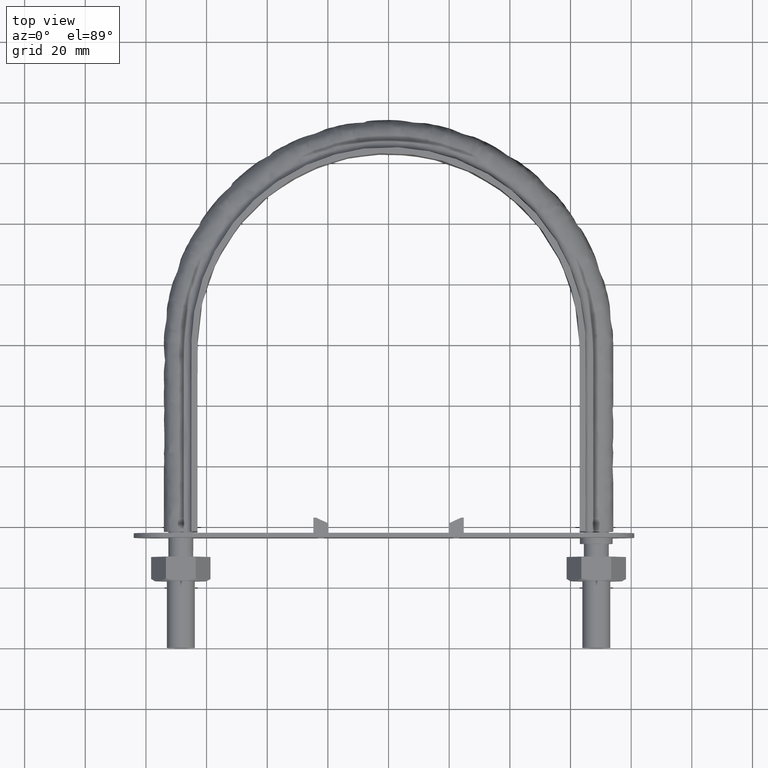
[diagram: clean part render]
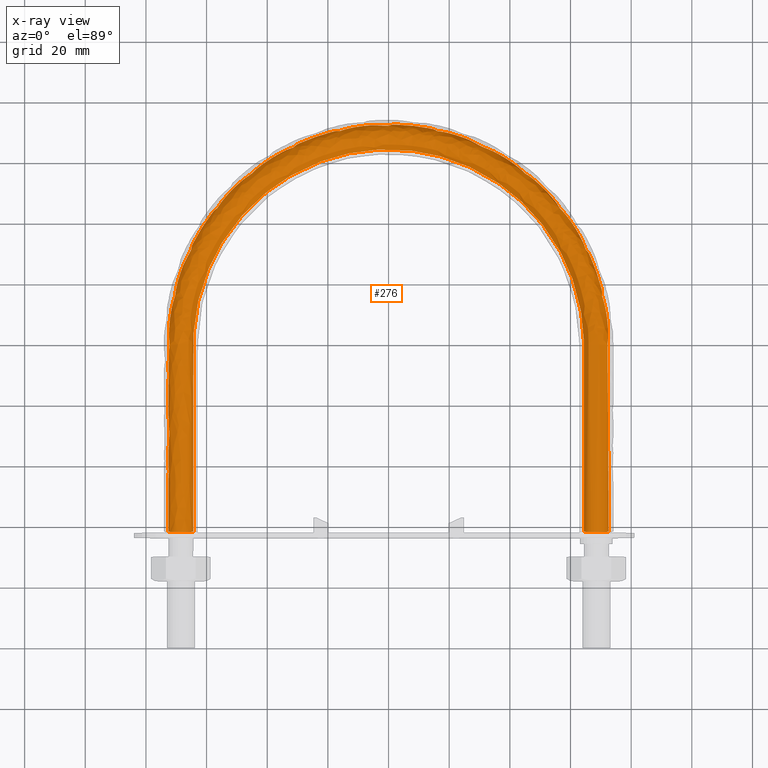
[diagram: x-ray — body ghosted, one internal face saturated and labeled with its STEP entity id]
A machine part, top view, then the same camera in x-ray: the body is ghosted and one INTERNAL B-rep face — a face not visible from any outside direction — is saturated and labeled: STEP entity #276.
In plain terms, the highlighted face is a freeform B-spline surface patch.
Its self-contained STEP definition (entity closure, byte-faithful):
#276 = ADVANCED_FACE( '', ( #399, #400 ), #401, .T. );
#399 = FACE_OUTER_BOUND( '', #1147, .T. );
#400 = FACE_OUTER_BOUND( '', #1148, .T. );
#401 = B_SPLINE_SURFACE_WITH_KNOTS( '', 3, 3, ( ( #1149, #1150, #1151, #1152, #1153, #1154, #1155, #1156, #1157, #1158, #1159, #1160, #1161, #1162, #1163, #1164 ), ( #1165, #1166, #1167, #1168, #1169, #1170, #1171, #1172, #1173, #1174, #1175, #1176, #1177, #1178, #1179, #1180 ), ( #1181, #1182, #1183, #1184, #1185, #1186, #1187, #1188, #1189, #1190, #1191, #1192, #1193, #1194, #1195, #1196 ), ( #1197, #1198, #1199, #1200, #1201, #1202, #1203, #1204, #1205, #1206, #1207, #1208, #1209, #1210, #1211, #1212 ), ( #1213, #1214, #1215, #1216, #1217, #1218, #1219, #1220, #1221, #1222, #1223, #1224, #1225, #1226, #1227, #1228 ), ( #1229, #1230, #1231, #1232, #1233, #1234, #1235, #1236, #1237, #1238, #1239, #1240, #1241, #1242, #1243, #1244 ), ( #1245, #1246, #1247, #1248, #1249, #1250, #1251, #1252, #1253, #1254, #1255, #1256, #1257, #1258, #1259, #1260 ), ( #1261, #1262, #1263, #1264, #1265, #1266, #1267, #1268, #1269, #1270, #1271, #1272, #1273, #1274, #1275, #1276 ), ( #1277, #1278, #1279, #1280, #1281, #1282, #1283, #1284, #1285, #1286, #1287, #1288, #1289, #1290, #1291, #1292 ), ( #1293, #1294, #1295, #1296, #1297, #1298, #1299, #1300, #1301, #1302, #1303, #1304, #1305, #1306, #1307, #1308 ) ), .UNSPECIFIED., .T., .F., .F., ( 2, 1, 1, 1, 1, 1, 1, 1, 1, 1, 1, 2 ), ( 4, 3, 1, 1, 1, 1, 1, 1, 3, 4 ), ( -0.285714285714286, -0.142857142857143, 0.000000000000000, 0.142857142857143, 0.285714285714286, 0.428571428571429, 0.571428571428571, 0.714285714285714, 0.857142857142857, 1.00000000000000, 1.14285714285714, 1.28571428571429 ), ( 0.000000000000000, 1.00000000000000, 2.00000000000000, 3.00000000000000, 4.00000000000000, 5.00000000000000, 6.00000000000000, 7.00000000000000, 8.00000000000000, 9.00000000000000 ), .UNSPECIFIED. );
#1147 = EDGE_LOOP( '', ( #1613, #1614, #1615, #1616, #1617, #1618, #1619 ) );
#1148 = EDGE_LOOP( '', ( #1620, #1621, #1622, #1623, #1624, #1625, #1626 ) );
#1149 = CARTESIAN_POINT( '', ( 65.5768231851220, 34.4100000000000, -3.66554778583224 ) );
#1150 = CARTESIAN_POINT( '', ( 65.5768231851220, 56.2766666666667, -3.66554778583224 ) );
#1151 = CARTESIAN_POINT( '', ( 65.5768231851220, 78.1433333333333, -3.66554778583224 ) );
#1152 = CARTESIAN_POINT( '', ( 65.5768231851220, 100.010000000000, -3.66554778583224 ) );
#1153 = CARTESIAN_POINT( '', ( 65.5768231851220, 109.810412946437, -3.66554778583224 ) );
#1154 = CARTESIAN_POINT( '', ( 61.0995968961814, 129.437533366360, -3.66554778583224 ) );
#1155 = CARTESIAN_POINT( '', ( 42.2822329601010, 153.029317256153, -3.66554778583224 ) );
#1156 = CARTESIAN_POINT( '', ( 15.0903542287160, 166.125346927234, -3.66554778583224 ) );
#1157 = CARTESIAN_POINT( '', ( -15.0903542287159, 166.125346927234, -3.66554778583224 ) );
#1158 = CARTESIAN_POINT( '', ( -42.2822329601010, 153.029317256153, -3.66554778583225 ) );
#1159 = CARTESIAN_POINT( '', ( -61.0995968961813, 129.437533366360, -3.66554778583224 ) );
#1160 = CARTESIAN_POINT( '', ( -65.5768231851220, 109.810412946437, -3.66554778583224 ) );
#1161 = CARTESIAN_POINT( '', ( -65.5768231851220, 100.010000000000, -3.66554778583224 ) );
#1162 = CARTESIAN_POINT( '', ( -65.5768231851220, 78.1433333333334, -3.66554778583224 ) );
#1163 = CARTESIAN_POINT( '', ( -65.5768231851220, 56.2766666666667, -3.66554778583224 ) );
#1164 = CARTESIAN_POINT( '', ( -65.5768231851220, 34.4100000000000, -3.66554778583224 ) );
#1165 = CARTESIAN_POINT( '', ( 63.8115884074390, 34.4100000000000, 0.000000000000000 ) );
#1166 = CARTESIAN_POINT( '', ( 63.8115884074390, 56.2766666666667, 0.000000000000000 ) );
#1167 = CARTESIAN_POINT( '', ( 63.8115884074390, 78.1433333333333, 0.000000000000000 ) );
#1168 = CARTESIAN_POINT( '', ( 63.8115884074391, 100.010000000000, 0.000000000000000 ) );
#1169 = CARTESIAN_POINT( '', ( 63.8115884074391, 109.541810733922, 0.000000000000000 ) );
#1170 = CARTESIAN_POINT( '', ( 59.4548826800158, 128.647605348737, 0.000000000000000 ) );
#1171 = CARTESIAN_POINT( '', ( 41.1440554078192, 151.601528642038, 0.000000000000000 ) );
#1172 = CARTESIAN_POINT( '', ( 14.6841433633789, 164.345732662477, 0.000000000000000 ) );
#1173 = CARTESIAN_POINT( '', ( -14.6841433633788, 164.345732662477, 0.000000000000000 ) );
#1174 = CARTESIAN_POINT( '', ( -41.1440554078192, 151.601528642038, 0.000000000000000 ) );
#1175 = CARTESIAN_POINT( '', ( -59.4548826800158, 128.647605348737, 0.000000000000000 ) );
#1176 = CARTESIAN_POINT( '', ( -63.8115884074390, 109.541810733922, 0.000000000000000 ) );
#1177 = CARTESIAN_POINT( '', ( -63.8115884074390, 100.010000000000, 0.000000000000000 ) );
#1178 = CARTESIAN_POINT( '', ( -63.8115884074390, 78.1433333333334, 0.000000000000000 ) );
#1179 = CARTESIAN_POINT( '', ( -63.8115884074390, 56.2766666666667, 0.000000000000000 ) );
#1180 = CARTESIAN_POINT( '', ( -63.8115884074390, 34.4100000000000, 0.000000000000000 ) );
#1181 = CARTESIAN_POINT( '', ( 65.5768231851220, 34.4100000000000, 3.66554778583224 ) );
#1182 = CARTESIAN_POINT( '', ( 65.5768231851220, 56.2766666666667, 3.66554778583224 ) );
#1183 = CARTESIAN_POINT( '', ( 65.5768231851220, 78.1433333333333, 3.66554778583224 ) );
#1184 = CARTESIAN_POINT( '', ( 65.5768231851220, 100.010000000000, 3.66554778583224 ) );
#1185 = CARTESIAN_POINT( '', ( 65.5768231851220, 109.810412946437, 3.66554778583224 ) );
#1186 = CARTESIAN_POINT( '', ( 61.0995968961814, 129.437533366360, 3.66554778583224 ) );
#1187 = CARTESIAN_POINT( '', ( 42.2822329601010, 153.029317256153, 3.66554778583224 ) );
#1188 = CARTESIAN_POINT( '', ( 15.0903542287160, 166.125346927234, 3.66554778583224 ) );
#1189 = CARTESIAN_POINT( '', ( -15.0903542287159, 166.125346927234, 3.66554778583224 ) );
#1190 = CARTESIAN_POINT( '', ( -42.2822329601010, 153.029317256153, 3.66554778583224 ) );
#1191 = CARTESIAN_POINT( '', ( -61.0995968961813, 129.437533366360, 3.66554778583224 ) );
#1192 = CARTESIAN_POINT( '', ( -65.5768231851220, 109.810412946437, 3.66554778583224 ) );
#1193 = CARTESIAN_POINT( '', ( -65.5768231851220, 100.010000000000, 3.66554778583224 ) );
#1194 = CARTESIAN_POINT( '', ( -65.5768231851220, 78.1433333333334, 3.66554778583224 ) );
#1195 = CARTESIAN_POINT( '', ( -65.5768231851220, 56.2766666666667, 3.66554778583224 ) );
#1196 = CARTESIAN_POINT( '', ( -65.5768231851220, 34.4100000000000, 3.66554778583224 ) );
#1197 = CARTESIAN_POINT( '', ( 69.5432697263483, 34.4100000000000, 4.57086332538453 ) );
#1198 = CARTESIAN_POINT( '', ( 69.5432697263483, 56.2766666666667, 4.57086332538453 ) );
#1199 = CARTESIAN_POINT( '', ( 69.5432697263483, 78.1433333333333, 4.57086332538453 ) );
#1200 = CARTESIAN_POINT( '', ( 69.5432697263483, 100.010000000000, 4.57086332538453 ) );
#1201 = CARTESIAN_POINT( '', ( 69.5432697263483, 110.413956639472, 4.57086332538453 ) );
#1202 = CARTESIAN_POINT( '', ( 64.7952361938497, 131.212485510365, 4.57086332538453 ) );
#1203 = CARTESIAN_POINT( '', ( 44.8396947054875, 156.237529150489, 4.57086332538452 ) );
#1204 = CARTESIAN_POINT( '', ( 16.0031017579368, 170.124103882630, 4.57086332538453 ) );
#1205 = CARTESIAN_POINT( '', ( -16.0031017579367, 170.124103882630, 4.57086332538453 ) );
#1206 = CARTESIAN_POINT( '', ( -44.8396947054874, 156.237529150489, 4.57086332538453 ) );
#1207 = CARTESIAN_POINT( '', ( -64.7952361938496, 131.212485510365, 4.57086332538452 ) );
#1208 = CARTESIAN_POINT( '', ( -69.5432697263483, 110.413956639472, 4.57086332538453 ) );
#1209 = CARTESIAN_POINT( '', ( -69.5432697263483, 100.010000000000, 4.57086332538453 ) );
#1210 = CARTESIAN_POINT( '', ( -69.5432697263483, 78.1433333333334, 4.57086332538453 ) );
#1211 = CARTESIAN_POINT( '', ( -69.5432697263483, 56.2766666666667, 4.57086332538453 ) );
#1212 = CARTESIAN_POINT( '', ( -69.5432697263483, 34.4100000000000, 4.57086332538453 ) );
#1213 = CARTESIAN_POINT( '', ( 72.7241128848103, 34.4100000000000, 2.03422555230246 ) );
#1214 = CARTESIAN_POINT( '', ( 72.7241128848103, 56.2766666666667, 2.03422555230246 ) );
#1215 = CARTESIAN_POINT( '', ( 72.7241128848103, 78.1433333333333, 2.03422555230246 ) );
#1216 = CARTESIAN_POINT( '', ( 72.7241128848103, 100.010000000000, 2.03422555230246 ) );
#1217 = CARTESIAN_POINT( '', ( 72.7241128848103, 110.897961102124, 2.03422555230246 ) );
#1218 = CARTESIAN_POINT( '', ( 67.7589088045731, 132.635886613889, 2.03422555230246 ) );
#1219 = CARTESIAN_POINT( '', ( 46.8906197869901, 158.810315333015, 2.03422555230246 ) );
#1220 = CARTESIAN_POINT( '', ( 16.7350684448815, 173.330857981473, 2.03422555230246 ) );
#1221 = CARTESIAN_POINT( '', ( -16.7350684448815, 173.330857981473, 2.03422555230246 ) );
#1222 = CARTESIAN_POINT( '', ( -46.8906197869901, 158.810315333015, 2.03422555230246 ) );
#1223 = CARTESIAN_POINT( '', ( -67.7589088045731, 132.635886613889, 2.03422555230246 ) );
#1224 = CARTESIAN_POINT( '', ( -72.7241128848102, 110.897961102124, 2.03422555230246 ) );
#1225 = CARTESIAN_POINT( '', ( -72.7241128848102, 100.010000000000, 2.03422555230246 ) );
#1226 = CARTESIAN_POINT( '', ( -72.7241128848102, 78.1433333333334, 2.03422555230246 ) );
#1227 = CARTESIAN_POINT( '', ( -72.7241128848103, 56.2766666666667, 2.03422555230246 ) );
#1228 = CARTESIAN_POINT( '', ( -72.7241128848103, 34.4100000000000, 2.03422555230246 ) );
#1229 = CARTESIAN_POINT( '', ( 72.7241128848103, 34.4100000000000, -2.03422555230246 ) );
#1230 = CARTESIAN_POINT( '', ( 72.7241128848103, 56.2766666666667, -2.03422555230246 ) );
#1231 = CARTESIAN_POINT( '', ( 72.7241128848103, 78.1433333333333, -2.03422555230246 ) );
#1232 = CARTESIAN_POINT( '', ( 72.7241128848103, 100.010000000000, -2.03422555230246 ) );
#1233 = CARTESIAN_POINT( '', ( 72.7241128848103, 110.897961102124, -2.03422555230246 ) );
#1234 = CARTESIAN_POINT( '', ( 67.7589088045731, 132.635886613889, -2.03422555230246 ) );
#1235 = CARTESIAN_POINT( '', ( 46.8906197869901, 158.810315333015, -2.03422555230246 ) );
#1236 = CARTESIAN_POINT( '', ( 16.7350684448815, 173.330857981473, -2.03422555230246 ) );
#1237 = CARTESIAN_POINT( '', ( -16.7350684448815, 173.330857981473, -2.03422555230246 ) );
#1238 = CARTESIAN_POINT( '', ( -46.8906197869901, 158.810315333015, -2.03422555230246 ) );
#1239 = CARTESIAN_POINT( '', ( -67.7589088045731, 132.635886613889, -2.03422555230246 ) );
#1240 = CARTESIAN_POINT( '', ( -72.7241128848102, 110.897961102124, -2.03422555230246 ) );
#1241 = CARTESIAN_POINT( '', ( -72.7241128848102, 100.010000000000, -2.03422555230246 ) );
#1242 = CARTESIAN_POINT( '', ( -72.7241128848102, 78.1433333333334, -2.03422555230246 ) );
#1243 = CARTESIAN_POINT( '', ( -72.7241128848103, 56.2766666666667, -2.03422555230246 ) );
#1244 = CARTESIAN_POINT( '', ( -72.7241128848103, 34.4100000000000, -2.03422555230246 ) );
#1245 = CARTESIAN_POINT( '', ( 69.5432697263483, 34.4100000000000, -4.57086332538453 ) );
#1246 = CARTESIAN_POINT( '', ( 69.5432697263483, 56.2766666666667, -4.57086332538453 ) );
#1247 = CARTESIAN_POINT( '', ( 69.5432697263483, 78.1433333333333, -4.57086332538453 ) );
#1248 = CARTESIAN_POINT( '', ( 69.5432697263483, 100.010000000000, -4.57086332538453 ) );
#1249 = CARTESIAN_POINT( '', ( 69.5432697263483, 110.413956639472, -4.57086332538453 ) );
#1250 = CARTESIAN_POINT( '', ( 64.7952361938497, 131.212485510365, -4.57086332538453 ) );
#1251 = CARTESIAN_POINT( '', ( 44.8396947054875, 156.237529150489, -4.57086332538453 ) );
#1252 = CARTESIAN_POINT( '', ( 16.0031017579368, 170.124103882630, -4.57086332538453 ) );
#1253 = CARTESIAN_POINT( '', ( -16.0031017579367, 170.124103882630, -4.57086332538453 ) );
#1254 = CARTESIAN_POINT( '', ( -44.8396947054874, 156.237529150489, -4.57086332538453 ) );
#1255 = CARTESIAN_POINT( '', ( -64.7952361938496, 131.212485510365, -4.57086332538453 ) );
#1256 = CARTESIAN_POINT( '', ( -69.5432697263483, 110.413956639472, -4.57086332538453 ) );
#1257 = CARTESIAN_POINT( '', ( -69.5432697263483, 100.010000000000, -4.57086332538453 ) );
#1258 = CARTESIAN_POINT( '', ( -69.5432697263483, 78.1433333333334, -4.57086332538453 ) );
#1259 = CARTESIAN_POINT( '', ( -69.5432697263483, 56.2766666666667, -4.57086332538453 ) );
#1260 = CARTESIAN_POINT( '', ( -69.5432697263483, 34.4100000000000, -4.57086332538453 ) );
#1261 = CARTESIAN_POINT( '', ( 65.5768231851220, 34.4100000000000, -3.66554778583224 ) );
#1262 = CARTESIAN_POINT( '', ( 65.5768231851220, 56.2766666666667, -3.66554778583224 ) );
#1263 = CARTESIAN_POINT( '', ( 65.5768231851220, 78.1433333333333, -3.66554778583224 ) );
#1264 = CARTESIAN_POINT( '', ( 65.5768231851220, 100.010000000000, -3.66554778583224 ) );
#1265 = CARTESIAN_POINT( '', ( 65.5768231851220, 109.810412946437, -3.66554778583224 ) );
#1266 = CARTESIAN_POINT( '', ( 61.0995968961814, 129.437533366360, -3.66554778583224 ) );
#1267 = CARTESIAN_POINT( '', ( 42.2822329601010, 153.029317256153, -3.66554778583224 ) );
#1268 = CARTESIAN_POINT( '', ( 15.0903542287160, 166.125346927234, -3.66554778583224 ) );
#1269 = CARTESIAN_POINT( '', ( -15.0903542287159, 166.125346927234, -3.66554778583224 ) );
#1270 = CARTESIAN_POINT( '', ( -42.2822329601010, 153.029317256153, -3.66554778583225 ) );
#1271 = CARTESIAN_POINT( '', ( -61.0995968961813, 129.437533366360, -3.66554778583224 ) );
#1272 = CARTESIAN_POINT( '', ( -65.5768231851220, 109.810412946437, -3.66554778583224 ) );
#1273 = CARTESIAN_POINT( '', ( -65.5768231851220, 100.010000000000, -3.66554778583224 ) );
#1274 = CARTESIAN_POINT( '', ( -65.5768231851220, 78.1433333333334, -3.66554778583224 ) );
#1275 = CARTESIAN_POINT( '', ( -65.5768231851220, 56.2766666666667, -3.66554778583224 ) );
#1276 = CARTESIAN_POINT( '', ( -65.5768231851220, 34.4100000000000, -3.66554778583224 ) );
#1277 = CARTESIAN_POINT( '', ( 63.8115884074390, 34.4100000000000, 0.000000000000000 ) );
#1278 = CARTESIAN_POINT( '', ( 63.8115884074390, 56.2766666666667, 0.000000000000000 ) );
#1279 = CARTESIAN_POINT( '', ( 63.8115884074390, 78.1433333333333, 0.000000000000000 ) );
#1280 = CARTESIAN_POINT( '', ( 63.8115884074391, 100.010000000000, 0.000000000000000 ) );
#1281 = CARTESIAN_POINT( '', ( 63.8115884074391, 109.541810733922, 0.000000000000000 ) );
#1282 = CARTESIAN_POINT( '', ( 59.4548826800158, 128.647605348737, 0.000000000000000 ) );
#1283 = CARTESIAN_POINT( '', ( 41.1440554078192, 151.601528642038, 0.000000000000000 ) );
#1284 = CARTESIAN_POINT( '', ( 14.6841433633789, 164.345732662477, 0.000000000000000 ) );
#1285 = CARTESIAN_POINT( '', ( -14.6841433633788, 164.345732662477, 0.000000000000000 ) );
#1286 = CARTESIAN_POINT( '', ( -41.1440554078192, 151.601528642038, 0.000000000000000 ) );
#1287 = CARTESIAN_POINT( '', ( -59.4548826800158, 128.647605348737, 0.000000000000000 ) );
#1288 = CARTESIAN_POINT( '', ( -63.8115884074390, 109.541810733922, 0.000000000000000 ) );
#1289 = CARTESIAN_POINT( '', ( -63.8115884074390, 100.010000000000, 0.000000000000000 ) );
#1290 = CARTESIAN_POINT( '', ( -63.8115884074390, 78.1433333333334, 0.000000000000000 ) );
#1291 = CARTESIAN_POINT( '', ( -63.8115884074390, 56.2766666666667, 0.000000000000000 ) );
#1292 = CARTESIAN_POINT( '', ( -63.8115884074390, 34.4100000000000, 0.000000000000000 ) );
#1293 = CARTESIAN_POINT( '', ( 65.5768231851220, 34.4100000000000, 3.66554778583224 ) );
#1294 = CARTESIAN_POINT( '', ( 65.5768231851220, 56.2766666666667, 3.66554778583224 ) );
#1295 = CARTESIAN_POINT( '', ( 65.5768231851220, 78.1433333333333, 3.66554778583224 ) );
#1296 = CARTESIAN_POINT( '', ( 65.5768231851220, 100.010000000000, 3.66554778583224 ) );
#1297 = CARTESIAN_POINT( '', ( 65.5768231851220, 109.810412946437, 3.66554778583224 ) );
#1298 = CARTESIAN_POINT( '', ( 61.0995968961814, 129.437533366360, 3.66554778583224 ) );
#1299 = CARTESIAN_POINT( '', ( 42.2822329601010, 153.029317256153, 3.66554778583224 ) );
#1300 = CARTESIAN_POINT( '', ( 15.0903542287160, 166.125346927234, 3.66554778583224 ) );
#1301 = CARTESIAN_POINT( '', ( -15.0903542287159, 166.125346927234, 3.66554778583224 ) );
#1302 = CARTESIAN_POINT( '', ( -42.2822329601010, 153.029317256153, 3.66554778583224 ) );
#1303 = CARTESIAN_POINT( '', ( -61.0995968961813, 129.437533366360, 3.66554778583224 ) );
#1304 = CARTESIAN_POINT( '', ( -65.5768231851220, 109.810412946437, 3.66554778583224 ) );
#1305 = CARTESIAN_POINT( '', ( -65.5768231851220, 100.010000000000, 3.66554778583224 ) );
#1306 = CARTESIAN_POINT( '', ( -65.5768231851220, 78.1433333333334, 3.66554778583224 ) );
#1307 = CARTESIAN_POINT( '', ( -65.5768231851220, 56.2766666666667, 3.66554778583224 ) );
#1308 = CARTESIAN_POINT( '', ( -65.5768231851220, 34.4100000000000, 3.66554778583224 ) );
#1613 = ORIENTED_EDGE( '', *, *, #2381, .T. );
#1614 = ORIENTED_EDGE( '', *, *, #2382, .T. );
#1615 = ORIENTED_EDGE( '', *, *, #2380, .T. );
#1616 = ORIENTED_EDGE( '', *, *, #2379, .T. );
#1617 = ORIENTED_EDGE( '', *, *, #2383, .T. );
#1618 = ORIENTED_EDGE( '', *, *, #2384, .T. );
#1619 = ORIENTED_EDGE( '', *, *, #2385, .T. );
#1620 = ORIENTED_EDGE( '', *, *, #2386, .T. );
#1621 = ORIENTED_EDGE( '', *, *, #2387, .T. );
#1622 = ORIENTED_EDGE( '', *, *, #2388, .T. );
#1623 = ORIENTED_EDGE( '', *, *, #2389, .T. );
#1624 = ORIENTED_EDGE( '', *, *, #2390, .T. );
#1625 = ORIENTED_EDGE( '', *, *, #2391, .T. );
#1626 = ORIENTED_EDGE( '', *, *, #2392, .T. );
#2379 = EDGE_CURVE( '', #2617, #2628, #2633, .T. );
#2380 = EDGE_CURVE( '', #2618, #2617, #2634, .T. );
#2381 = EDGE_CURVE( '', #2622, #2620, #2635, .T. );
#2382 = EDGE_CURVE( '', #2620, #2618, #2636, .T. );
#2383 = EDGE_CURVE( '', #2628, #2626, #2637, .T. );
#2384 = EDGE_CURVE( '', #2626, #2624, #2638, .T. );
#2385 = EDGE_CURVE( '', #2624, #2622, #2639, .T. );
#2386 = EDGE_CURVE( '', #2640, #2641, #2642, .T. );
#2387 = EDGE_CURVE( '', #2641, #2643, #2644, .T. );
#2388 = EDGE_CURVE( '', #2643, #2645, #2646, .T. );
#2389 = EDGE_CURVE( '', #2645, #2647, #2648, .T. );
#2390 = EDGE_CURVE( '', #2647, #2649, #2650, .T. );
#2391 = EDGE_CURVE( '', #2649, #2651, #2652, .T. );
#2392 = EDGE_CURVE( '', #2651, #2640, #2653, .T. );
#2617 = VERTEX_POINT( '', #3209 );
#2618 = VERTEX_POINT( '', #3210 );
#2620 = VERTEX_POINT( '', #3212 );
#2622 = VERTEX_POINT( '', #3214 );
#2624 = VERTEX_POINT( '', #3216 );
#2626 = VERTEX_POINT( '', #3218 );
#2628 = VERTEX_POINT( '', #3220 );
#2633 = B_SPLINE_CURVE_WITH_KNOTS( '', 3, ( #3225, #3226, #3227, #3228 ), .UNSPECIFIED., .F., .F., ( 4, 4 ), ( 0.0109748044148775, 0.0146317467085369 ), .UNSPECIFIED. );
#2634 = B_SPLINE_CURVE_WITH_KNOTS( '', 3, ( #3229, #3230, #3231, #3232 ), .UNSPECIFIED., .F., .F., ( 4, 4 ), ( 0.00731437302338651, 0.0109748044148775 ), .UNSPECIFIED. );
#2635 = B_SPLINE_CURVE_WITH_KNOTS( '', 3, ( #3233, #3234, #3235, #3236 ), .UNSPECIFIED., .F., .F., ( 4, 4 ), ( 5.20417042793042E-017, 0.00365969768494636 ), .UNSPECIFIED. );
#2636 = B_SPLINE_CURVE_WITH_KNOTS( '', 3, ( #3237, #3238, #3239, #3240 ), .UNSPECIFIED., .F., .F., ( 4, 4 ), ( 0.00365969768494636, 0.00731437302338651 ), .UNSPECIFIED. );
#2637 = B_SPLINE_CURVE_WITH_KNOTS( '', 3, ( #3241, #3242, #3243, #3244 ), .UNSPECIFIED., .F., .F., ( 4, 4 ), ( 0.0146317467085369, 0.0182856759681434 ), .UNSPECIFIED. );
#2638 = B_SPLINE_CURVE_WITH_KNOTS( '', 3, ( #3245, #3246, #3247, #3248 ), .UNSPECIFIED., .F., .F., ( 4, 4 ), ( 0.0182856759681434, 0.0219456464543829 ), .UNSPECIFIED. );
#2639 = B_SPLINE_CURVE_WITH_KNOTS( '', 3, ( #3249, #3250, #3251, #3252 ), .UNSPECIFIED., .F., .F., ( 4, 4 ), ( 0.0219456464543829, 0.0255944202292312 ), .UNSPECIFIED. );
#2640 = VERTEX_POINT( '', #3253 );
#2641 = VERTEX_POINT( '', #3254 );
#2642 = B_SPLINE_CURVE_WITH_KNOTS( '', 3, ( #3255, #3256, #3257, #3258 ), .UNSPECIFIED., .F., .F., ( 4, 4 ), ( 5.10961454146422E-017, 0.00365969768494570 ), .UNSPECIFIED. );
#2643 = VERTEX_POINT( '', #3259 );
#2644 = B_SPLINE_CURVE_WITH_KNOTS( '', 3, ( #3260, #3261, #3262, #3263 ), .UNSPECIFIED., .F., .F., ( 4, 4 ), ( 0.00365969768494570, 0.00731437302338657 ), .UNSPECIFIED. );
#2645 = VERTEX_POINT( '', #3264 );
#2646 = B_SPLINE_CURVE_WITH_KNOTS( '', 3, ( #3265, #3266, #3267, #3268 ), .UNSPECIFIED., .F., .F., ( 4, 4 ), ( 0.00731437302338657, 0.0109748044148757 ), .UNSPECIFIED. );
#2647 = VERTEX_POINT( '', #3269 );
#2648 = B_SPLINE_CURVE_WITH_KNOTS( '', 3, ( #3270, #3271, #3272, #3273 ), .UNSPECIFIED., .F., .F., ( 4, 4 ), ( 0.0109748044148757, 0.0146317467085371 ), .UNSPECIFIED. );
#2649 = VERTEX_POINT( '', #3274 );
#2650 = B_SPLINE_CURVE_WITH_KNOTS( '', 3, ( #3275, #3276, #3277, #3278 ), .UNSPECIFIED., .F., .F., ( 4, 4 ), ( 0.0146317467085371, 0.0182856759681440 ), .UNSPECIFIED. );
#2651 = VERTEX_POINT( '', #3279 );
#2652 = B_SPLINE_CURVE_WITH_KNOTS( '', 3, ( #3280, #3281, #3282, #3283 ), .UNSPECIFIED., .F., .F., ( 4, 4 ), ( 0.0182856759681440, 0.0219456464543830 ), .UNSPECIFIED. );
#2653 = B_SPLINE_CURVE_WITH_KNOTS( '', 3, ( #3284, #3285, #3286, #3287 ), .UNSPECIFIED., .F., .F., ( 4, 4 ), ( 0.0219456464543830, 0.0255944202292313 ), .UNSPECIFIED. );
#3209 = CARTESIAN_POINT( '', ( -72.1939723583998, 38.3000000000000, -1.77892333038216 ) );
#3210 = CARTESIAN_POINT( '', ( -69.4123358292209, 38.3000000000000, -3.99720443994546 ) );
#3212 = CARTESIAN_POINT( '', ( -65.9436918123797, 38.3000000000000, -3.20550907811933 ) );
#3214 = CARTESIAN_POINT( '', ( -64.4000000000000, 38.3000000000001, 5.33264346537427E-014 ) );
#3216 = CARTESIAN_POINT( '', ( -65.9436918123818, 38.3000000000000, 3.20550907812097 ) );
#3218 = CARTESIAN_POINT( '', ( -69.4123358292213, 38.3000000000000, 3.99720443994539 ) );
#3220 = CARTESIAN_POINT( '', ( -72.1939723583999, 38.3000000000000, 1.77892333038206 ) );
#3225 = CARTESIAN_POINT( '', ( -72.1939723583999, 38.3000000000001, -1.77892333038212 ) );
#3226 = CARTESIAN_POINT( '', ( -72.7241128848103, 38.3000000000001, -0.678075184100916 ) );
#3227 = CARTESIAN_POINT( '', ( -72.7241128848103, 38.3000000000001, 0.678075184100827 ) );
#3228 = CARTESIAN_POINT( '', ( -72.1939723583999, 38.3000000000001, 1.77892333038206 ) );
#3229 = CARTESIAN_POINT( '', ( -69.4123358292209, 38.3000000000001, -3.99720443994546 ) );
#3230 = CARTESIAN_POINT( '', ( -70.6035507791689, 38.3000000000001, -3.72531740102384 ) );
#3231 = CARTESIAN_POINT( '', ( -71.6638318319895, 38.3000000000001, -2.87977147666321 ) );
#3232 = CARTESIAN_POINT( '', ( -72.1939723583998, 38.3000000000001, -1.77892333038215 ) );
#3233 = CARTESIAN_POINT( '', ( -64.4000000000000, 38.3000000000001, -2.40476041857285E-013 ) );
#3234 = CARTESIAN_POINT( '', ( -64.4000000000001, 38.3000000000001, -1.22184926194441 ) );
#3235 = CARTESIAN_POINT( '', ( -64.9884115925612, 38.3000000000001, -2.44369852388861 ) );
#3236 = CARTESIAN_POINT( '', ( -65.9436918123797, 38.3000000000001, -3.20550907811933 ) );
#3237 = CARTESIAN_POINT( '', ( -65.9436918123797, 38.3000000000001, -3.20550907811935 ) );
#3238 = CARTESIAN_POINT( '', ( -66.8989720321979, 38.3000000000001, -3.96731963234980 ) );
#3239 = CARTESIAN_POINT( '', ( -68.2211208792731, 38.3000000000001, -4.26909147886706 ) );
#3240 = CARTESIAN_POINT( '', ( -69.4123358292210, 38.3000000000001, -3.99720443994545 ) );
#3241 = CARTESIAN_POINT( '', ( -72.1939723583999, 38.3000000000001, 1.77892333038192 ) );
#3242 = CARTESIAN_POINT( '', ( -71.6638318319897, 38.3000000000001, 2.87977147666301 ) );
#3243 = CARTESIAN_POINT( '', ( -70.6035507791691, 38.3000000000001, 3.72531740102365 ) );
#3244 = CARTESIAN_POINT( '', ( -69.4123358292213, 38.3000000000001, 3.99720443994537 ) );
#3245 = CARTESIAN_POINT( '', ( -69.4123358292224, 38.3000000000001, 3.99720443994507 ) );
#3246 = CARTESIAN_POINT( '', ( -68.2211208792748, 38.3000000000001, 4.26909147886706 ) );
#3247 = CARTESIAN_POINT( '', ( -66.8989720321999, 38.3000000000001, 3.96731963235030 ) );
#3248 = CARTESIAN_POINT( '', ( -65.9436918123818, 38.3000000000001, 3.20550907812097 ) );
#3249 = CARTESIAN_POINT( '', ( -65.9436918123818, 38.3000000000001, 3.20550907812097 ) );
#3250 = CARTESIAN_POINT( '', ( -64.9884115925620, 38.3000000000001, 2.44369852389036 ) );
#3251 = CARTESIAN_POINT( '', ( -64.4000000000000, 38.3000000000001, 1.22184926194518 ) );
#3252 = CARTESIAN_POINT( '', ( -64.4000000000000, 38.3000000000001, 4.33680868994202E-016 ) );
#3253 = CARTESIAN_POINT( '', ( 64.4000000000000, 38.3000000000000, -5.02688037867743E-014 ) );
#3254 = CARTESIAN_POINT( '', ( 65.9436918123792, 38.3000000000000, 3.20550907811892 ) );
#3255 = CARTESIAN_POINT( '', ( 64.4000000000000, 38.3000000000000, 4.33680868994202E-016 ) );
#3256 = CARTESIAN_POINT( '', ( 64.4000000000000, 38.3000000000000, 1.22184926194409 ) );
#3257 = CARTESIAN_POINT( '', ( 64.9884115925610, 38.3000000000000, 2.44369852388817 ) );
#3258 = CARTESIAN_POINT( '', ( 65.9436918123792, 38.3000000000000, 3.20550907811892 ) );
#3259 = CARTESIAN_POINT( '', ( 69.4123358292210, 38.3000000000000, 3.99720443994546 ) );
#3260 = CARTESIAN_POINT( '', ( 65.9436918123792, 38.3000000000000, 3.20550907811892 ) );
#3261 = CARTESIAN_POINT( '', ( 66.8989720321974, 38.3000000000000, 3.96731963234969 ) );
#3262 = CARTESIAN_POINT( '', ( 68.2211208792729, 38.3000000000000, 4.26909147886711 ) );
#3263 = CARTESIAN_POINT( '', ( 69.4123358292210, 38.3000000000000, 3.99720443994545 ) );
#3264 = CARTESIAN_POINT( '', ( 72.1939723583990, 38.3000000000000, 1.77892333038380 ) );
#3265 = CARTESIAN_POINT( '', ( 69.4123358292210, 38.3000000000000, 3.99720443994545 ) );
#3266 = CARTESIAN_POINT( '', ( 70.6035507791683, 38.3000000000000, 3.72531740102395 ) );
#3267 = CARTESIAN_POINT( '', ( 71.6638318319884, 38.3000000000000, 2.87977147666405 ) );
#3268 = CARTESIAN_POINT( '', ( 72.1939723583990, 38.3000000000000, 1.77892333038378 ) );
#3269 = CARTESIAN_POINT( '', ( 72.1939723583998, 38.3000000000000, -1.77892333038216 ) );
#3270 = CARTESIAN_POINT( '', ( 72.1939723583990, 38.3000000000000, 1.77892333038381 ) );
#3271 = CARTESIAN_POINT( '', ( 72.7241128848103, 38.3000000000000, 0.678075184102261 ) );
#3272 = CARTESIAN_POINT( '', ( 72.7241128848105, 38.3000000000000, -0.678075184099977 ) );
#3273 = CARTESIAN_POINT( '', ( 72.1939723584002, 38.3000000000000, -1.77892333038151 ) );
#3274 = CARTESIAN_POINT( '', ( 69.4123358292208, 38.3000000000000, -3.99720443994548 ) );
#3275 = CARTESIAN_POINT( '', ( 72.1939723583999, 38.3000000000000, -1.77892333038216 ) );
#3276 = CARTESIAN_POINT( '', ( 71.6638318319895, 38.3000000000000, -2.87977147666326 ) );
#3277 = CARTESIAN_POINT( '', ( 70.6035507791688, 38.3000000000000, -3.72531740102390 ) );
#3278 = CARTESIAN_POINT( '', ( 69.4123358292208, 38.3000000000000, -3.99720443994549 ) );
#3279 = CARTESIAN_POINT( '', ( 65.9436918123817, 38.3000000000000, -3.20550907812094 ) );
#3280 = CARTESIAN_POINT( '', ( 69.4123358292209, 38.3000000000000, -3.99720443994548 ) );
#3281 = CARTESIAN_POINT( '', ( 68.2211208792739, 38.3000000000000, -4.26909147886685 ) );
#3282 = CARTESIAN_POINT( '', ( 66.8989720321997, 38.3000000000000, -3.96731963235019 ) );
#3283 = CARTESIAN_POINT( '', ( 65.9436918123817, 38.3000000000000, -3.20550907812092 ) );
#3284 = CARTESIAN_POINT( '', ( 65.9436918123817, 38.3000000000000, -3.20550907812093 ) );
#3285 = CARTESIAN_POINT( '', ( 64.9884115925620, 38.3000000000000, -2.44369852389032 ) );
#3286 = CARTESIAN_POINT( '', ( 64.4000000000003, 38.3000000000000, -1.22184926194570 ) );
#3287 = CARTESIAN_POINT( '', ( 64.4000000000000, 38.3000000000000, -1.16855310150488E-012 ) );